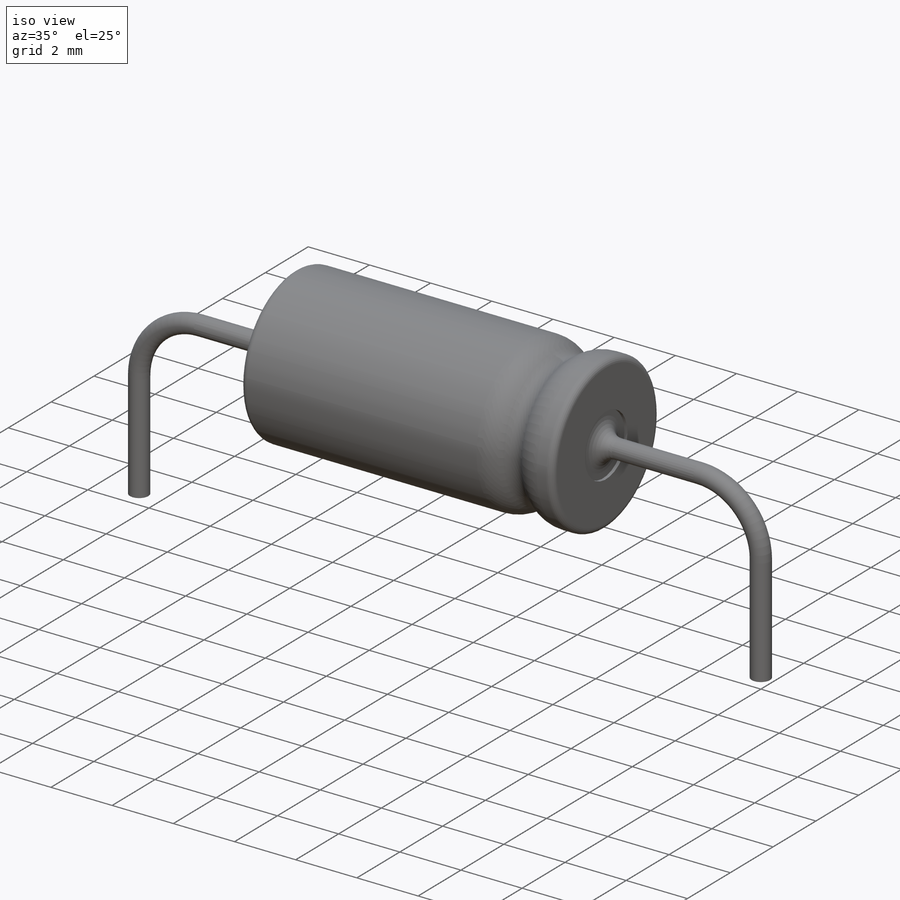
[diagram: iso view]
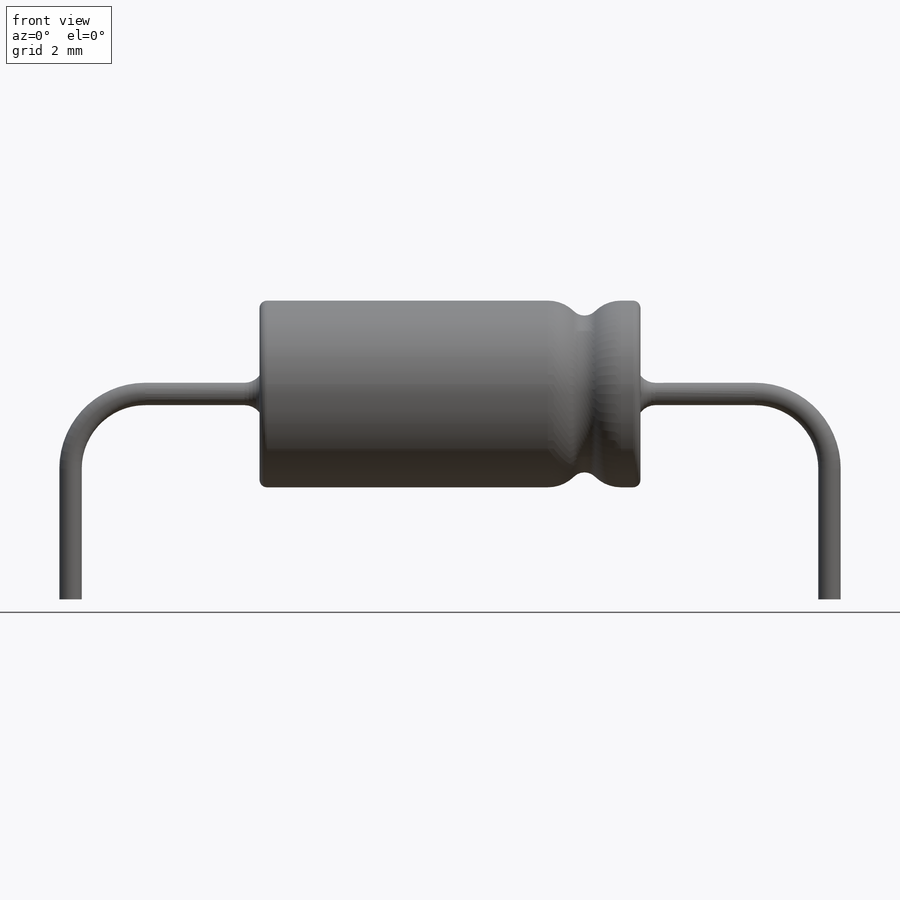
[diagram: front view]
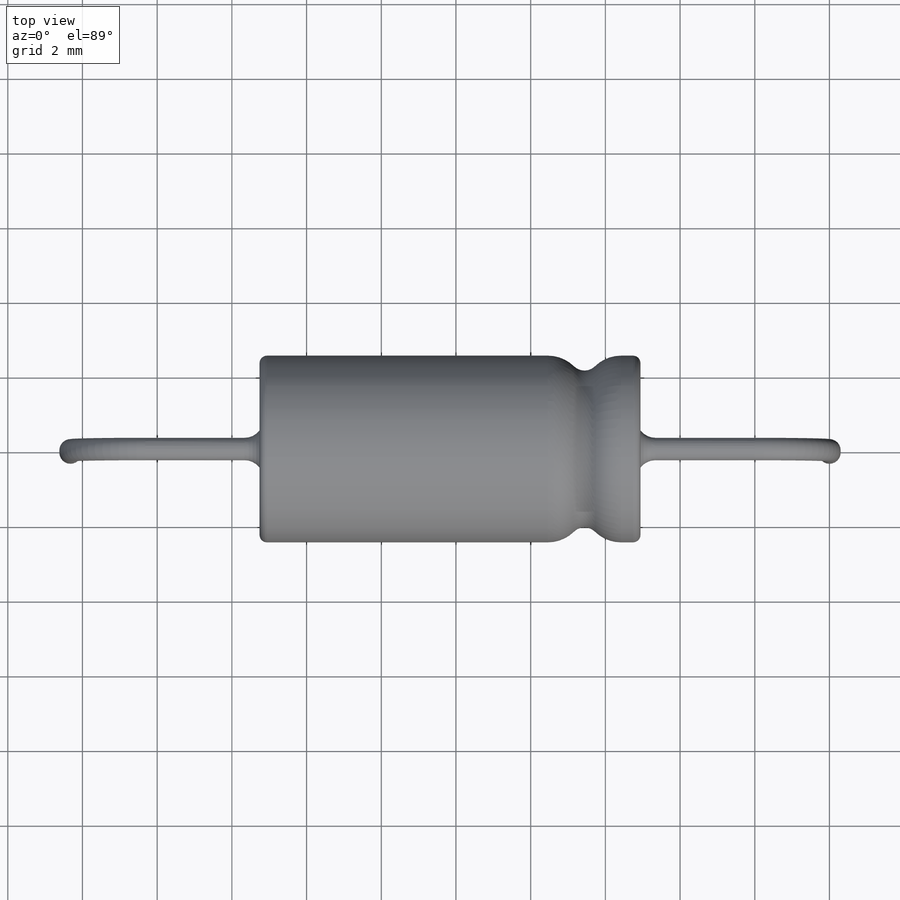
[diagram: top view]
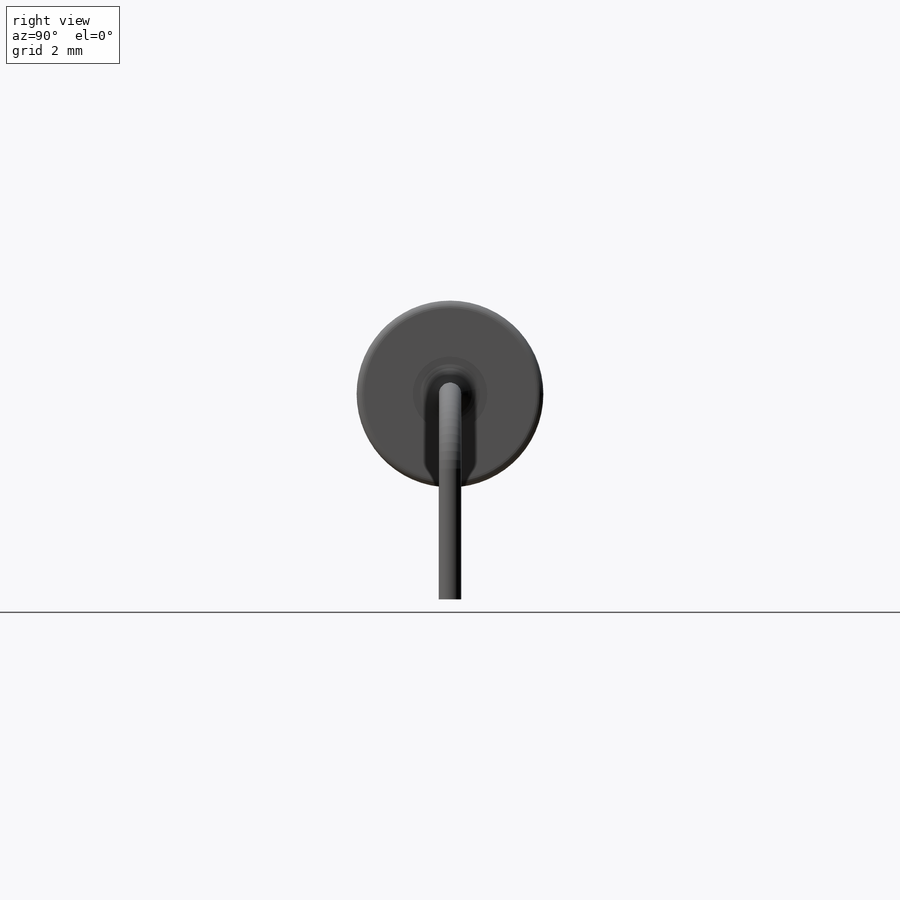
[diagram: right view]
SOLIDWORKS PART (.sldprt)
format: sldprt  version: not decoded by parser v0  size: 374,784 bytes
history: native  units: mm
features: sketch x8, cut_extrude x2, fillet x2, plane x2, material x1, extrude x1, sweep x1, mirror x1, cut_revolve x1 (+12 scaffold rows collapsed)
feature tree (31):
  scaffold x12  (default folders/planes/origin — collapsed)
  material  "Material <not specified>"
  sketch  "Sketch1"  dims[c1.D1=2.5mm c1.D2=10.2mm c1.D3=2.5mm c1.D4=~43.098936mm c2.D1=2.5mm c2.D4=5.06mm c2.D3=2.5mm c2.D5=~24.819689mm c2.D2=10.2mm c3.D1=360.0deg c3.D3=1.0mm c3.D4=1.0mm c3.D7=0.0mm]
  sketch  "Sketch2"  dims[D1=2.0mm]
  cut_extrude  "Cut-Extrude1"  Depth=0.1mm
  sketch  "Sketch3"  dims[D1=2.0mm]
  cut_extrude  "Cut-Extrude2"  Depth=0.1mm
  fillet  "Fillet1"  Radius=0.2mm
  sketch  "Sketch4"  dims[D1=0.6mm]
  extrude  "Boss-Extrude1"  Depth=0.62mm
  fillet  "Fillet2"  Radius=0.5mm
  sketch  "Sketch5"  dims[D1=0.5mm D2=3.0mm]
  sketch  "Sketch7"  dims[D1=0.0mm]
  sweep  "Boss-Sweep2"
  plane  "Plane4"  Offset=5.1mm
  mirror  "Mirror1"
  sketch  "Sketch8"  dims[D1=0.4mm D2=1.0mm D3=1.2201mm D4=~0.285714mm]
  cut_revolve  "Cut-Revolve1"  Angle=360deg
  plane  "Board Plane"  Offset=0.3mm
  sketch  "Component_Outline"
decode coverage: 13 of 16 modeling features carry decoded parameters
note: ~ marks probable driven/reference dimensions
note: suppression state not decoded; provenance and decode notes live in map.json
